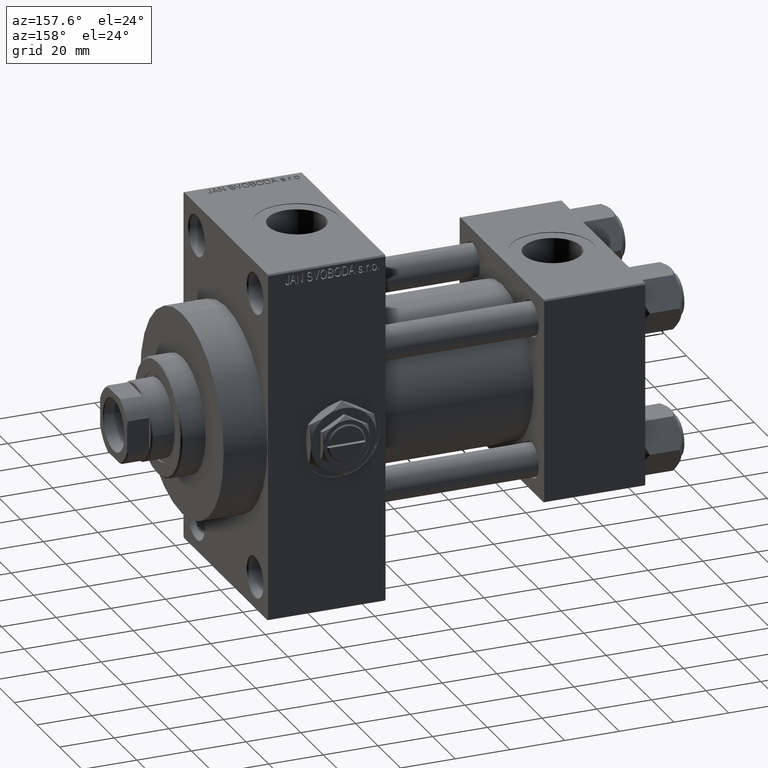
[diagram: clean part render]
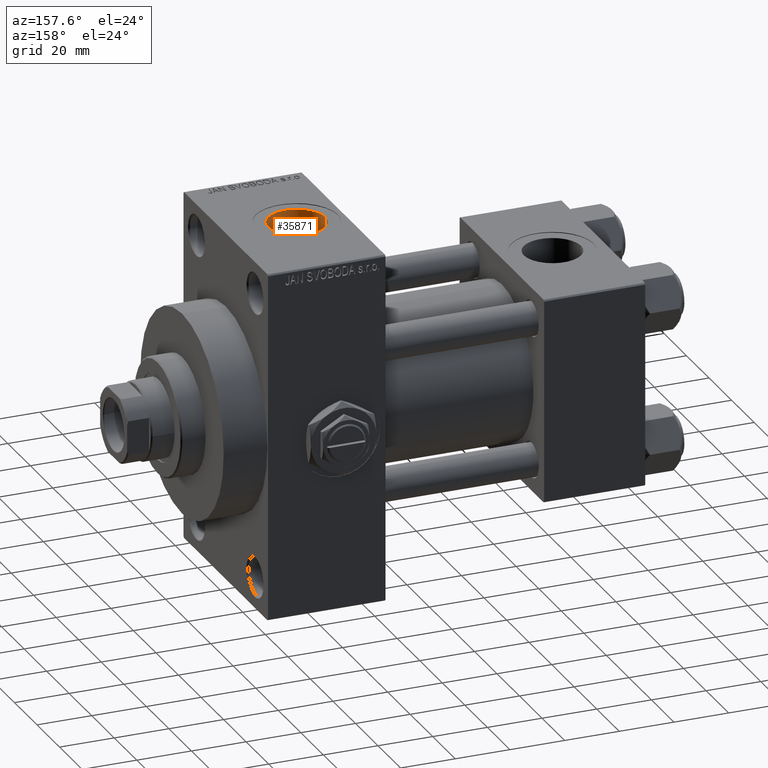
[diagram: same view with one face highlighted and labeled with its STEP entity id]
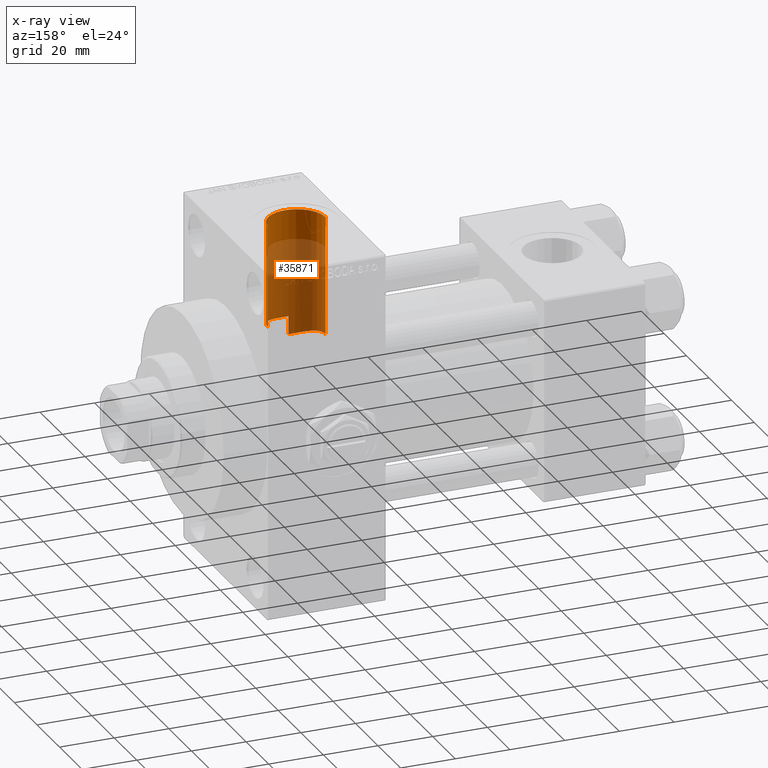
[diagram: x-ray of the same camera — body ghosted, the highlighted face saturated]
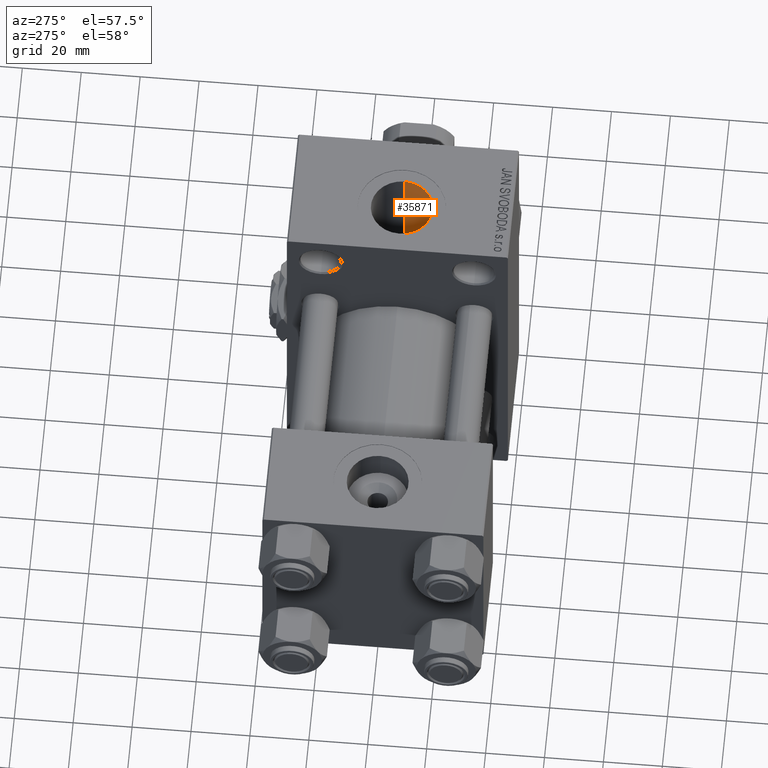
[diagram: same view with one face highlighted and labeled with its STEP entity id]
A machine part, auxiliary view. The second image highlights one B-rep face of the part: STEP entity #35871.
The next image is the same camera in x-ray: the body ghosted, the highlighted face saturated — about 74% of this face is hidden behind the body in this view.
A second angle (auxiliary view) of the same face is appended — the face is thin or edge-on in the first view.
In plain terms, the highlighted cylindrical surface (edge-blend (fillet) strip) has radius 10.48 mm, axis along (0, 0, -1).
Its self-contained STEP definition (entity closure, byte-faithful):
#180 = ORIENTED_EDGE ( 'NONE', *, *, #2959, .F. ) ;
#466 = ORIENTED_EDGE ( 'NONE', *, *, #21674, .F. ) ;
#553 = CARTESIAN_POINT ( 'NONE',  ( 122.4800000000001603, 1.369086318735094867E-14, 26.50000000000006750 ) ) ;
#623 = DIRECTION ( 'NONE',  ( -1.000000000000000000, 0.000000000000000000, 0.000000000000000000 ) ) ;
#786 = CARTESIAN_POINT ( 'NONE',  ( 111.4868983507927851, -10.49443499905855148, 24.33364968799252281 ) ) ;
#882 = CIRCLE ( 'NONE', #47481, 10.48000000000000398 ) ;
#1285 = CARTESIAN_POINT ( 'NONE',  ( 118.6874981071936617, -8.077221093107572969, 25.24030799844105744 ) ) ;
#1698 = VECTOR ( 'NONE', #33431, 1000.000000000000000 ) ;
#2671 = CARTESIAN_POINT ( 'NONE',  ( 101.5199999999999960, -0.6440971456680791851, 20.50000000000000355 ) ) ;
#2959 = EDGE_CURVE ( 'NONE', #30053, #33732, #14144, .T. ) ;
#3783 = CARTESIAN_POINT ( 'NONE',  ( 121.2276638786152034, -4.981583166679956598, 26.02957788900645753 ) ) ;
#4776 = EDGE_CURVE ( 'NONE', #34146, #33732, #41656, .T. ) ;
#5012 = CARTESIAN_POINT ( 'NONE',  ( 116.5335921408433393, -9.455792512420343243, 24.75606841526505875 ) ) ;
#5091 = FACE_OUTER_BOUND ( 'NONE', #13674, .T. ) ;
#5179 = CARTESIAN_POINT ( 'NONE',  ( 106.0263084910633324, -8.633636339713360641, 18.59810417378389857 ) ) ;
#5486 = CARTESIAN_POINT ( 'NONE',  ( 116.8603660912150275, -9.291949300782549770, 24.81826977973610227 ) ) ;
#5655 = VERTEX_POINT ( 'NONE', #38657 ) ;
#6124 = CARTESIAN_POINT ( 'NONE',  ( 103.2177924678372420, -5.727359184013979920, 19.68566307691175865 ) ) ;
#6363 = CARTESIAN_POINT ( 'NONE',  ( 102.1063378233202741, -3.470716205836931856, 20.20629303502188279 ) ) ;
#6863 = CARTESIAN_POINT ( 'NONE',  ( 101.8301889492347385, -2.551161066698730107, 20.34303009823682729 ) ) ;
#7354 = CARTESIAN_POINT ( 'NONE',  ( 102.4472730664947449, -4.356133276745596028, 20.04082582304832982 ) ) ;
#7888 = ORIENTED_EDGE ( 'NONE', *, *, #17881, .T. ) ;
#9156 = EDGE_CURVE ( 'NONE', #5655, #34146, #23152, .T. ) ;
#9599 = CARTESIAN_POINT ( 'NONE',  ( 108.2578787675114711, -9.794280953047090676, 18.00947878310445560 ) ) ;
#9849 = CARTESIAN_POINT ( 'NONE',  ( 105.0381797508611186, -7.858608369745952338, 18.93862270061622866 ) ) ;
#10078 = CARTESIAN_POINT ( 'NONE',  ( 106.5531845509293163, -8.975341525110641427, 18.43369678050422777 ) ) ;
#11207 = CARTESIAN_POINT ( 'NONE',  ( 121.6993435614956098, -3.985990130492289563, 26.20070574291654353 ) ) ;
#11931 = CARTESIAN_POINT ( 'NONE',  ( 121.8335546017134448, -3.642695553053297175, 26.25084325021122211 ) ) ;
#12002 = CARTESIAN_POINT ( 'NONE',  ( 122.4800000000001603, 1.369086318735094867E-14, 26.50000000000006750 ) ) ;
#12181 = CARTESIAN_POINT ( 'NONE',  ( 115.8600678267363975, -9.750145953289933942, 24.64162310621548357 ) ) ;
#13674 = EDGE_LOOP ( 'NONE', ( #466, #23411, #27763, #180, #7888, #45445 ) ) ;
#14144 = LINE ( 'NONE', #48055, #1698 ) ;
#14556 = CARTESIAN_POINT ( 'NONE',  ( 110.7400000000000375, -10.40398000767015851, 24.37226292324945121 ) ) ;
#14669 = CARTESIAN_POINT ( 'NONE',  ( 122.4800000000000040, -0.7466733969459896647, 26.50000000000001066 ) ) ;
#15154 = CARTESIAN_POINT ( 'NONE',  ( 119.5076201536012235, -7.348534936426553088, 25.46581292754184034 ) ) ;
#15631 = CARTESIAN_POINT ( 'NONE',  ( 122.4011065554137900, -1.483758503940582951, 26.46850309434598003 ) ) ;
#15953 = DIRECTION ( 'NONE',  ( 0.000000000000000000, 0.000000000000000000, -1.000000000000000000 ) ) ;
#16445 = CYLINDRICAL_SURFACE ( 'NONE', #33649, 10.48000000000000398 ) ;
#16469 = CARTESIAN_POINT ( 'NONE',  ( 122.4800000000000040, -1.055894908382857498E-14, 86.79999999999995453 ) ) ;
#16477 = EDGE_CURVE ( 'NONE', #39351, #36436, #25368, .T. ) ;
#17881 = EDGE_CURVE ( 'NONE', #30053, #36436, #27842, .T. ) ;
#19917 = CARTESIAN_POINT ( 'NONE',  ( 112.0000000000000000, -1.184237892933500047E-14, 86.79999999999995453 ) ) ;
#20477 = CARTESIAN_POINT ( 'NONE',  ( 110.7400000000000375, -10.40398000767015674, 17.66372554134601813 ) ) ;
#20565 = CARTESIAN_POINT ( 'NONE',  ( 114.4459359432478465, -10.21777125531390418, 24.45211332338677934 ) ) ;
#21674 = EDGE_CURVE ( 'NONE', #5655, #39351, #882, .T. ) ;
#21685 = CARTESIAN_POINT ( 'NONE',  ( 101.5199999999999960, 2.510525899711658857E-15, 20.50000000000000000 ) ) ;
#21937 = CARTESIAN_POINT ( 'NONE',  ( 101.5788755912575425, -1.283068547344821120, 20.46971103676261450 ) ) ;
#23152 = LINE ( 'NONE', #16469, #37441 ) ;
#23411 = ORIENTED_EDGE ( 'NONE', *, *, #9156, .T. ) ;
#24929 = CARTESIAN_POINT ( 'NONE',  ( 103.7690786171585131, -6.494668957650285179, 19.44580269579670073 ) ) ;
#25368 = LINE ( 'NONE', #34743, #42568 ) ;
#26285 = CARTESIAN_POINT ( 'NONE',  ( 121.3963988635403126, -4.655434592126344029, 26.09007526830298929 ) ) ;
#27763 = ORIENTED_EDGE ( 'NONE', *, *, #4776, .T. ) ;
#27842 = B_SPLINE_CURVE_WITH_KNOTS ( 'NONE', 3,
 ( #20477, #28618, #31856, #39791, #9599, #47704, #36067, #10078, #5179, #9849, #35336, #31608, #24929, #40032, #6124, #37033, #7354, #6363, #40513, #6863, #30078, #21937, #2671, #44716 ),
 .UNSPECIFIED., .F., .F.,
 ( 4, 2, 2, 2, 2, 2, 2, 2, 2, 2, 2, 4 ),
 ( 0.01794441051450873861, 0.01987210289621873724, 0.02083594908707374002, 0.02179979527792873933, 0.02372748765963870674, 0.02565518004134867414, 0.02661902623220366998, 0.02758287242305866582, 0.02951056480476868180, 0.03047441099562368805, 0.03143825718647869777, 0.03336594956818871721 ),
 .UNSPECIFIED. ) ;
#28618 = CARTESIAN_POINT ( 'NONE',  ( 110.0989953179743708, -10.32634953368261321, 17.70945009121302860 ) ) ;
#29976 = CARTESIAN_POINT ( 'NONE',  ( 122.1654842721634253, -2.575241489874369183, 26.37710048711163324 ) ) ;
#30053 = VERTEX_POINT ( 'NONE', #30670 ) ;
#30078 = CARTESIAN_POINT ( 'NONE',  ( 101.7557754428708421, -2.233872855162174709, 20.38041083426451294 ) ) ;
#30228 = CARTESIAN_POINT ( 'NONE',  ( 120.6508763872861323, -5.926808359427518269, 25.83050513016099359 ) ) ;
#30670 = CARTESIAN_POINT ( 'NONE',  ( 110.7400000000000375, -10.40398000767015674, 17.66372554134601813 ) ) ;
#30707 = CARTESIAN_POINT ( 'NONE',  ( 122.0665133812163106, -2.938253791439171092, 26.33899517628733733 ) ) ;
#30769 = DIRECTION ( 'NONE',  ( 0.000000000000000000, 0.000000000000000000, -1.000000000000000000 ) ) ;
#31208 = CARTESIAN_POINT ( 'NONE',  ( 113.7216423275559407, -10.36418010715237870, 24.38933169417624569 ) ) ;
#31608 = CARTESIAN_POINT ( 'NONE',  ( 103.9658951235676625, -6.736478654131078159, 19.36312927646823567 ) ) ;
#31699 = CARTESIAN_POINT ( 'NONE',  ( 118.3983008714430412, -8.308216825530749361, 25.16494175890555240 ) ) ;
#31856 = CARTESIAN_POINT ( 'NONE',  ( 109.4743138489852328, -10.19113621709994000, 17.78872259750077589 ) ) ;
#33431 = DIRECTION ( 'NONE',  ( -0.000000000000000000, -0.000000000000000000, 1.000000000000000000 ) ) ;
#33486 = CARTESIAN_POINT ( 'NONE',  ( 101.5199999999999960, -1.184237892933500047E-14, 63.79999999999996874 ) ) ;
#33649 = AXIS2_PLACEMENT_3D ( 'NONE', #19917, #15953, #623 ) ;
#33732 = VERTEX_POINT ( 'NONE', #14556 ) ;
#33945 = CARTESIAN_POINT ( 'NONE',  ( 119.9981355541606547, -6.811571481472495471, 25.61680511670813232 ) ) ;
#34146 = VERTEX_POINT ( 'NONE', #12002 ) ;
#34743 = CARTESIAN_POINT ( 'NONE',  ( 101.5199999999999960, -1.184237892933500047E-14, 86.79999999999995453 ) ) ;
#34925 = CARTESIAN_POINT ( 'NONE',  ( 117.4947120380321479, -8.931495953537156751, 24.95025484238639280 ) ) ;
#35336 = CARTESIAN_POINT ( 'NONE',  ( 104.5858530633664287, -7.432843903534921637, 19.11142359022018411 ) ) ;
#35417 = CARTESIAN_POINT ( 'NONE',  ( 117.8022832347253370, -8.734885810677001317, 25.02004257437573287 ) ) ;
#35664 = CARTESIAN_POINT ( 'NONE',  ( 112.2451057705677897, -10.50334255171941678, 24.32972513250578572 ) ) ;
#35772 = DIRECTION ( 'NONE',  ( -0.000000000000000000, -0.000000000000000000, -1.000000000000000000 ) ) ;
#35871 = ADVANCED_FACE ( 'NONE', ( #5091 ), #16445, .F. ) ;
#36067 = CARTESIAN_POINT ( 'NONE',  ( 107.3860343387703153, -9.414895611962244004, 18.21089574232528108 ) ) ;
#36436 = VERTEX_POINT ( 'NONE', #21685 ) ;
#37033 = CARTESIAN_POINT ( 'NONE',  ( 102.7251524828654823, -4.919883431204975288, 19.90870771860740973 ) ) ;
#37441 = VECTOR ( 'NONE', #46418, 1000.000000000000000 ) ;
#38406 = CARTESIAN_POINT ( 'NONE',  ( 110.7400000000000375, -10.40398000767015851, 24.37226292324945121 ) ) ;
#38657 = CARTESIAN_POINT ( 'NONE',  ( 122.4800000000000040, -1.055894908382857498E-14, 63.79999999999996874 ) ) ;
#39249 = DIRECTION ( 'NONE',  ( 1.000000000000000000, 0.000000000000000000, 0.000000000000000000 ) ) ;
#39351 = VERTEX_POINT ( 'NONE', #33486 ) ;
#39791 = CARTESIAN_POINT ( 'NONE',  ( 108.5601267213961876, -9.904527187573176406, 17.94888070193247387 ) ) ;
#40032 = CARTESIAN_POINT ( 'NONE',  ( 103.3953798552083612, -5.990768218169451487, 19.60690346560341979 ) ) ;
#40513 = CARTESIAN_POINT ( 'NONE',  ( 102.0054261414357057, -3.168907222089415665, 20.25599475177159192 ) ) ;
#41656 = B_SPLINE_CURVE_WITH_KNOTS ( 'NONE', 3,
 ( #553, #14669, #15631, #29976, #30707, #11931, #11207, #26285, #3783, #44858, #30228, #33945, #15154, #1285, #31699, #35417, #34925, #5486, #5012, #12181, #42602, #20565, #31208, #35664, #786, #38406 ),
 .UNSPECIFIED., .F., .F.,
 ( 4, 2, 2, 2, 2, 2, 2, 2, 2, 2, 2, 2, 4 ),
 ( 0.01781170071191072457, 0.02003745927526342369, 0.02115033855693977324, 0.02226321783861612280, 0.02337609712029247236, 0.02448897640196882192, 0.02671473496532150022, 0.02782761424699783243, 0.02894049352867416464, 0.03005337281035050032, 0.03116625209202683600, 0.03339201065537950736, 0.03561776921873217872 ),
 .UNSPECIFIED. ) ;
#42568 = VECTOR ( 'NONE', #30769, 1000.000000000000000 ) ;
#42602 = CARTESIAN_POINT ( 'NONE',  ( 115.5115735695664796, -9.881194972351270422, 24.58915736193082324 ) ) ;
#44716 = CARTESIAN_POINT ( 'NONE',  ( 101.5199999999999960, 2.510525899711658857E-15, 20.50000000000000000 ) ) ;
#44858 = CARTESIAN_POINT ( 'NONE',  ( 120.8553297434205973, -5.616857363200500330, 25.89992295911058307 ) ) ;
#45445 = ORIENTED_EDGE ( 'NONE', *, *, #16477, .F. ) ;
#46418 = DIRECTION ( 'NONE',  ( 0.000000000000000000, 0.000000000000000000, -1.000000000000000000 ) ) ;
#47404 = CARTESIAN_POINT ( 'NONE',  ( 112.0000000000000000, -1.184237892933500047E-14, 63.79999999999996874 ) ) ;
#47481 = AXIS2_PLACEMENT_3D ( 'NONE', #47404, #35772, #39249 ) ;
#47704 = CARTESIAN_POINT ( 'NONE',  ( 107.6712488263175231, -9.549519568135631076, 18.14045042009996678 ) ) ;
#48055 = CARTESIAN_POINT ( 'NONE',  ( 110.7400000000000375, -10.40398000767015851, 86.79999999999995453 ) ) ;